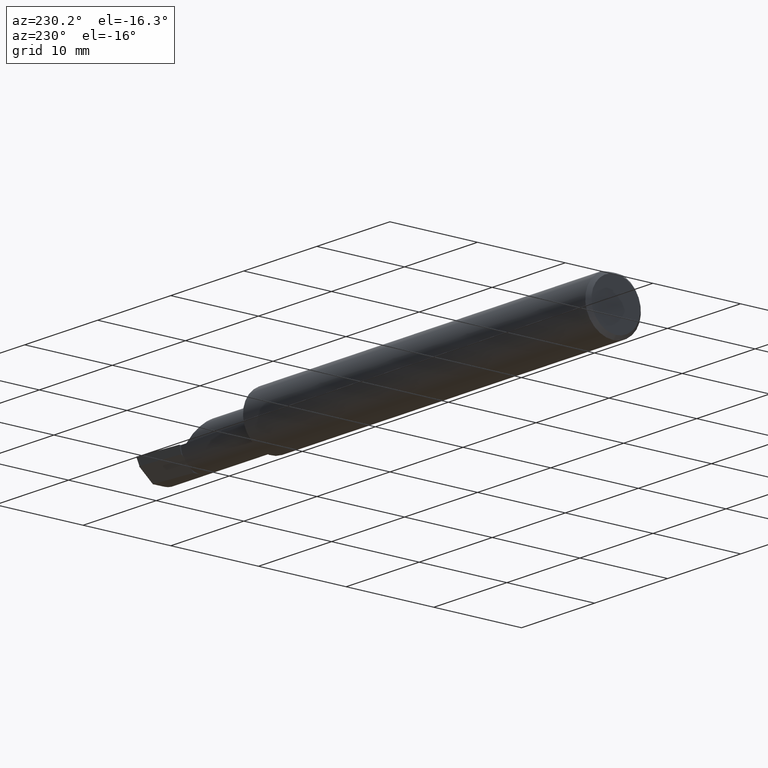
[diagram: clean part render]
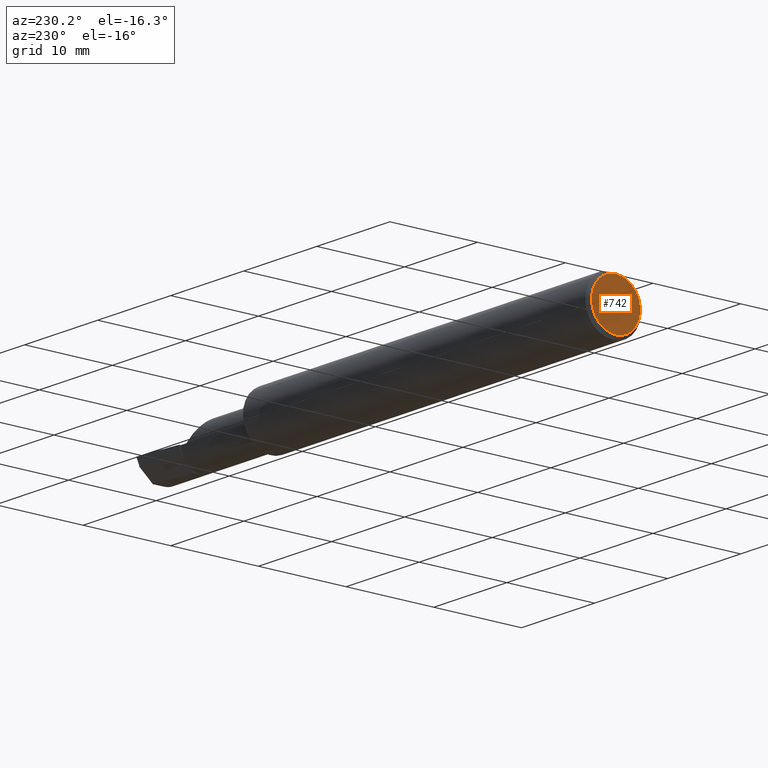
[diagram: same view with one face highlighted and labeled with its STEP entity id]
A machine part, auxiliary view. The second image highlights one B-rep face of the part: STEP entity #742.
In plain terms, the highlighted planar face has unit normal (1, 0, 0).
Its self-contained STEP definition (entity closure, byte-faithful):
#135 = CARTESIAN_POINT ( 'NONE',  ( 0.000000000000000000, 0.000000000000000000, 0.000000000000000000 ) ) ;
#139 = EDGE_CURVE ( 'NONE', #530, #638, #1189, .T. ) ;
#218 = ORIENTED_EDGE ( 'NONE', *, *, #402, .T. ) ;
#230 = EDGE_LOOP ( 'NONE', ( #218, #232 ) ) ;
#232 = ORIENTED_EDGE ( 'NONE', *, *, #139, .T. ) ;
#280 = AXIS2_PLACEMENT_3D ( 'NONE', #772, #1087, #656 ) ;
#345 = DIRECTION ( 'NONE',  ( -1.000000000000000000, -0.000000000000000000, -0.000000000000000000 ) ) ;
#402 = EDGE_CURVE ( 'NONE', #638, #530, #1216, .T. ) ;
#434 = DIRECTION ( 'NONE',  ( 1.000000000000000000, 0.000000000000000000, 0.000000000000000000 ) ) ;
#520 = CARTESIAN_POINT ( 'NONE',  ( 0.000000000000000000, 0.000000000000000000, -0.1098500000000004473 ) ) ;
#524 = FACE_OUTER_BOUND ( 'NONE', #230, .T. ) ;
#530 = VERTEX_POINT ( 'NONE', #631 ) ;
#631 = CARTESIAN_POINT ( 'NONE',  ( 0.000000000000000000, 1.437123018799421600E-17, 0.1098500000000004473 ) ) ;
#638 = VERTEX_POINT ( 'NONE', #520 ) ;
#656 = DIRECTION ( 'NONE',  ( 0.000000000000000000, 0.000000000000000000, -1.000000000000000000 ) ) ;
#742 = ADVANCED_FACE ( 'NONE', ( #524 ), #860, .F. ) ;
#772 = CARTESIAN_POINT ( 'NONE',  ( 0.000000000000000000, 0.000000000000000000, 0.000000000000000000 ) ) ;
#860 = PLANE ( 'NONE',  #984 ) ;
#984 = AXIS2_PLACEMENT_3D ( 'NONE', #1143, #434, #1070 ) ;
#1055 = DIRECTION ( 'NONE',  ( 0.000000000000000000, 0.000000000000000000, -1.000000000000000000 ) ) ;
#1070 = DIRECTION ( 'NONE',  ( 0.000000000000000000, 0.000000000000000000, -1.000000000000000000 ) ) ;
#1087 = DIRECTION ( 'NONE',  ( -1.000000000000000000, -0.000000000000000000, -0.000000000000000000 ) ) ;
#1143 = CARTESIAN_POINT ( 'NONE',  ( 0.000000000000000000, 0.000000000000000000, 0.000000000000000000 ) ) ;
#1189 = CIRCLE ( 'NONE', #280, 0.1098500000000004473 ) ;
#1216 = CIRCLE ( 'NONE', #1302, 0.1098500000000004473 ) ;
#1302 = AXIS2_PLACEMENT_3D ( 'NONE', #135, #345, #1055 ) ;